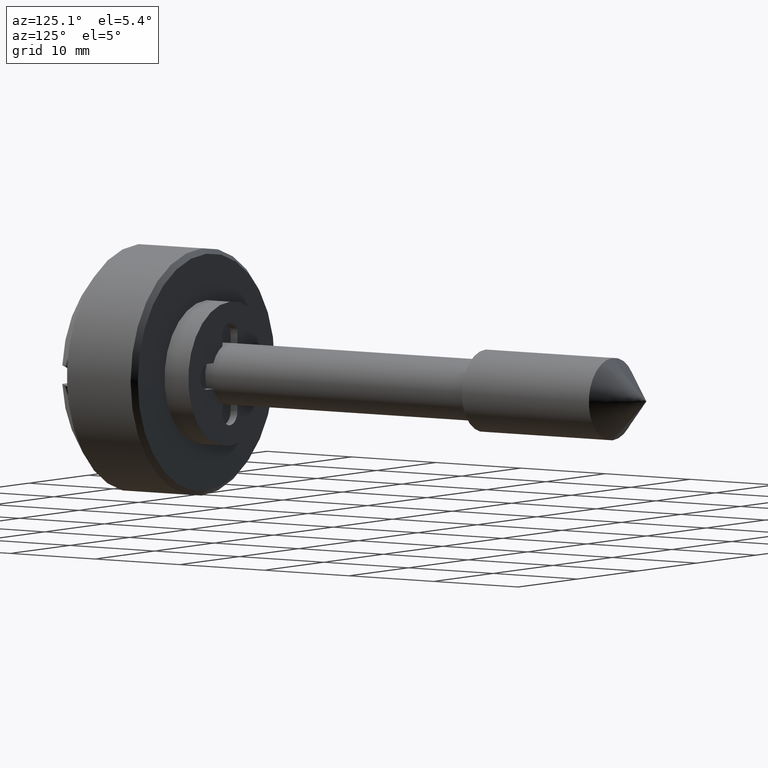
[diagram: clean part render]
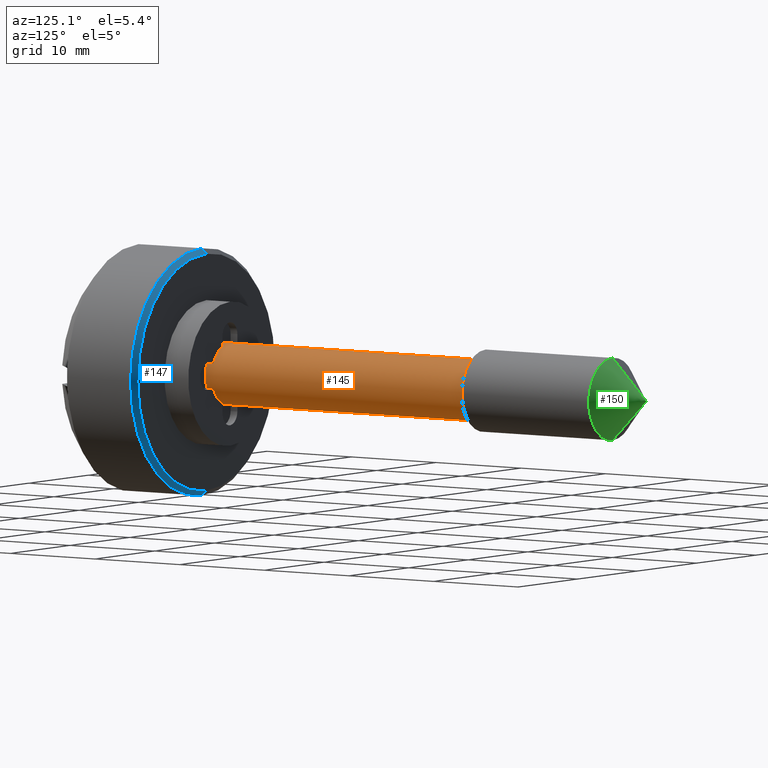
[diagram: same view with three faces highlighted in distinct colors, each labeled with its STEP entity id]
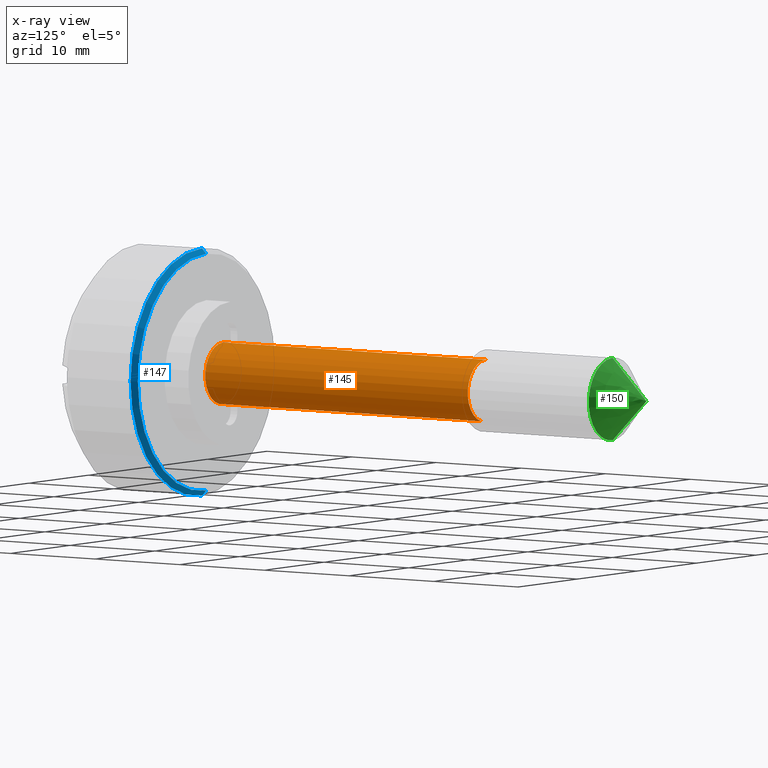
[diagram: x-ray of the same camera — body ghosted, the three highlighted faces saturated]
A machine part, auxiliary view with three faces highlighted in distinct colors.
The next image is the same camera in x-ray (body ghosted, the three faces saturated) — at least one of them is partly hidden behind the body in this view.
Their STEP definitions:

[orange] entity #145 — the highlighted cylindrical surface (edge-blend (fillet) strip) has radius 3 mm, axis along (0, 1, 0).
#145=ADVANCED_FACE('',(#490),#489,.T.);
#489=CYLINDRICAL_SURFACE('',#752,3.00000000000E+00);
#490=FACE_OUTER_BOUND('',#753,.T.);
#749=CARTESIAN_POINT('',(1.00000000000E+03,0.00000000000E+00,0.00000000000E+00));
#750=DIRECTION('',(1.00000000000E+00,-0.00000000000E+00,-0.00000000000E+00));
#751=DIRECTION('',(-0.00000000000E+00,-0.00000000000E+00,-1.00000000000E+00));
#752=AXIS2_PLACEMENT_3D('',#749,#750,#751);
#753=EDGE_LOOP('',(#988,#989,#990,#991));
#988=ORIENTED_EDGE('',*,*,#1086,.T.);
#989=ORIENTED_EDGE('',*,*,#1118,.T.);
#990=ORIENTED_EDGE('',*,*,#1098,.F.);
#991=ORIENTED_EDGE('',*,*,#1119,.F.);
#1086=EDGE_CURVE('',#1504,#1505,#1506,.T.);
#1098=EDGE_CURVE('',#1582,#1581,#1589,.T.);
#1118=EDGE_CURVE('',#1505,#1581,#1720,.T.);
#1119=EDGE_CURVE('',#1504,#1582,#1726,.T.);
#1504=VERTEX_POINT('',#2021);
#1505=VERTEX_POINT('',#2022);
#1506=CIRCLE('',#2026,3.00000000000E+00);
#1581=VERTEX_POINT('',#2075);
#1582=VERTEX_POINT('',#2076);
#1589=CIRCLE('',#2084,3.00000000000E+00);
#1720=(BOUNDED_CURVE() B_SPLINE_CURVE(1,(#2161,#2162),.UNSPECIFIED.,.F.,.F.) B_SPLINE_CURVE_WITH_KNOTS((2,2),(8.33333335810E-02,9.16666666255E-01),.UNSPECIFIED.) CURVE() GEOMETRIC_REPRESENTATION_ITEM() RATIONAL_B_SPLINE_CURVE((1.00000000000E+00,1.00000000000E+00)) REPRESENTATION_ITEM('') );
#1726=(BOUNDED_CURVE() B_SPLINE_CURVE(1,(#2163,#2164),.UNSPECIFIED.,.F.,.F.) B_SPLINE_CURVE_WITH_KNOTS((2,2),(8.33333333333E-02,9.16666666667E-01),.UNSPECIFIED.) CURVE() GEOMETRIC_REPRESENTATION_ITEM() RATIONAL_B_SPLINE_CURVE((7.50000000000E-01,7.50000000000E-01)) REPRESENTATION_ITEM('') );
#2021=CARTESIAN_POINT('',(0.00000000000E+00,-1.48029736617E-16,3.00000000000E+00));
#2022=CARTESIAN_POINT('',(0.00000000000E+00,0.00000000000E+00,-3.00000000000E+00));
#2023=CARTESIAN_POINT('',(0.00000000000E+00,0.00000000000E+00,0.00000000000E+00));
#2024=DIRECTION('',(1.00000000000E+00,0.00000000000E+00,0.00000000000E+00));
#2025=DIRECTION('',(0.00000000000E+00,-1.22460635382E-16,-1.00000000000E+00));
#2026=AXIS2_PLACEMENT_3D('',#2023,#2024,#2025);
#2075=CARTESIAN_POINT('',(3.10000000000E+01,0.00000000000E+00,-3.00000000000E+00));
#2076=CARTESIAN_POINT('',(3.10000000000E+01,-1.48029736617E-16,3.00000000000E+00));
#2081=CARTESIAN_POINT('',(3.10000000000E+01,0.00000000000E+00,0.00000000000E+00));
#2082=DIRECTION('',(1.00000000000E+00,0.00000000000E+00,0.00000000000E+00));
#2083=DIRECTION('',(0.00000000000E+00,-1.22460635382E-16,-1.00000000000E+00));
#2084=AXIS2_PLACEMENT_3D('',#2081,#2082,#2083);
#2161=CARTESIAN_POINT('',(9.21390030939E-09,0.00000000000E+00,-3.00000000000E+00));
#2162=CARTESIAN_POINT('',(3.09999999847E+01,0.00000000000E+00,-3.00000000000E+00));
#2163=CARTESIAN_POINT('',(0.00000000000E+00,-1.48029736617E-16,3.00000000000E+00));
#2164=CARTESIAN_POINT('',(3.10000000000E+01,-1.48029736617E-16,3.00000000000E+00));

[blue] entity #147 — the highlighted face is a freeform B-spline surface patch.
#147=ADVANCED_FACE('',(#510),#509,.T.);
#509=( BOUNDED_SURFACE() B_SPLINE_SURFACE( 2,1,((#765,#766),(#767,#768),(#769,#770),(#771,#772),(#773,#774)), .UNSPECIFIED.,.F.,.F.,.F.) B_SPLINE_SURFACE_WITH_KNOTS((3,2,3),(2,2),(0.00000000000E+00,5.00000000000E-01,1.00000000000E+00),(0.00000000000E+00,1.00000000000E+00), .UNSPECIFIED. ) GEOMETRIC_REPRESENTATION_ITEM() RATIONAL_B_SPLINE_SURFACE(((1.00000000000E+00,1.00000000000E+00),(7.07106781187E-01,7.07106781187E-01),(1.00000000000E+00,1.00000000000E+00),(7.07106781187E-01,7.07106781187E-01),(1.00000000000E+00,1.00000000000E+00))) REPRESENTATION_ITEM('') SURFACE() );
#510=FACE_OUTER_BOUND('',#775,.T.);
#765=CARTESIAN_POINT('',(9.50000000000E+00,0.00000000000E+00,0.00000000000E+00));
#766=CARTESIAN_POINT('',(-7.47056274848E+00,3.37985473175E-15,-1.69705627485E+01));
#767=CARTESIAN_POINT('',(9.50000000000E+00,0.00000000000E+00,0.00000000000E+00));
#768=CARTESIAN_POINT('',(-7.47056274848E+00,-1.69705627485E+01,-1.69705627485E+01));
#769=CARTESIAN_POINT('',(9.50000000000E+00,0.00000000000E+00,0.00000000000E+00));
#770=CARTESIAN_POINT('',(-7.47056274848E+00,-1.69705627485E+01,-4.41900199923E-15));
#771=CARTESIAN_POINT('',(9.50000000000E+00,0.00000000000E+00,0.00000000000E+00));
#772=CARTESIAN_POINT('',(-7.47056274848E+00,-1.69705627485E+01,1.69705627485E+01));
#773=CARTESIAN_POINT('',(9.50000000000E+00,0.00000000000E+00,0.00000000000E+00));
#774=CARTESIAN_POINT('',(-7.47056274848E+00,-5.45814926672E-15,1.69705627485E+01));
#775=EDGE_LOOP('',(#996,#997,#998,#999));
#996=ORIENTED_EDGE('',*,*,#1089,.F.);
#997=ORIENTED_EDGE('',*,*,#1120,.T.);
#998=ORIENTED_EDGE('',*,*,#1114,.F.);
#999=ORIENTED_EDGE('',*,*,#1121,.F.);
#1089=EDGE_CURVE('',#1519,#1518,#1526,.T.);
#1114=EDGE_CURVE('',#1683,#1676,#1696,.T.);
#1120=EDGE_CURVE('',#1519,#1676,#1732,.T.);
#1121=EDGE_CURVE('',#1518,#1683,#1738,.T.);
#1518=VERTEX_POINT('',#2031);
#1519=VERTEX_POINT('',#2032);
#1526=CIRCLE('',#2040,1.15000000000E+01);
#1676=VERTEX_POINT('',#2139);
#1683=VERTEX_POINT('',#2142);
#1696=CIRCLE('',#2152,1.20000000000E+01);
#1732=(BOUNDED_CURVE() B_SPLINE_CURVE(1,(#2165,#2166),.UNSPECIFIED.,.F.,.F.) B_SPLINE_CURVE_WITH_KNOTS((2,2),(6.77643997967E-01,7.07106781279E-01),.UNSPECIFIED.) CURVE() GEOMETRIC_REPRESENTATION_ITEM() RATIONAL_B_SPLINE_CURVE((1.00000000000E+00,1.00000000000E+00)) REPRESENTATION_ITEM('') );
#1738=(BOUNDED_CURVE() B_SPLINE_CURVE(1,(#2167,#2168),.UNSPECIFIED.,.F.,.F.) B_SPLINE_CURVE_WITH_KNOTS((2,2),(6.77643997975E-01,7.07106780467E-01),.UNSPECIFIED.) CURVE() GEOMETRIC_REPRESENTATION_ITEM() RATIONAL_B_SPLINE_CURVE((7.50000000000E-01,7.50000000000E-01)) REPRESENTATION_ITEM('') );
#2031=CARTESIAN_POINT('',(-2.00000000000E+00,0.00000000000E+00,-1.15000000000E+01));
#2032=CARTESIAN_POINT('',(-2.00000000000E+00,5.92118946467E-16,1.15000000000E+01));
#2037=CARTESIAN_POINT('',(-2.00000000000E+00,0.00000000000E+00,0.00000000000E+00));
#2038=DIRECTION('',(1.00000000000E+00,0.00000000000E+00,0.00000000000E+00));
#2039=DIRECTION('',(0.00000000000E+00,-1.22460635382E-16,-1.00000000000E+00));
#2040=AXIS2_PLACEMENT_3D('',#2037,#2038,#2039);
#2139=CARTESIAN_POINT('',(-2.50000000000E+00,-4.73695157173E-15,1.20000000000E+01));
#2142=CARTESIAN_POINT('',(-2.50000000000E+00,0.00000000000E+00,-1.20000000000E+01));
#2149=CARTESIAN_POINT('',(-2.50000000000E+00,0.00000000000E+00,0.00000000000E+00));
#2150=DIRECTION('',(-1.00000000000E+00,0.00000000000E+00,-0.00000000000E+00));
#2151=DIRECTION('',(0.00000000000E+00,-1.22460635382E-16,-1.00000000000E+00));
#2152=AXIS2_PLACEMENT_3D('',#2149,#2150,#2151);
#2165=CARTESIAN_POINT('',(-1.99999998862E+00,-5.98902036357E-15,1.14999999886E+01));
#2166=CARTESIAN_POINT('',(-2.50000000157E+00,-6.24941256029E-15,1.20000000016E+01));
#2167=CARTESIAN_POINT('',(-1.99999998876E+00,4.81495020193E-15,-1.14999999888E+01));
#2168=CARTESIAN_POINT('',(-2.49999998779E+00,5.02429586268E-15,-1.19999999878E+01));

[green] entity #150 — the highlighted face is a freeform B-spline surface patch.
#150=ADVANCED_FACE('',(#540),#539,.T.);
#539=( BOUNDED_SURFACE() B_SPLINE_SURFACE( 2,1,((#786,#787),(#788,#789),(#790,#791),(#792,#793),(#794,#795)), .UNSPECIFIED.,.F.,.F.,.F.) B_SPLINE_SURFACE_WITH_KNOTS((3,2,3),(2,2),(0.00000000000E+00,5.00000000000E-01,1.00000000000E+00),(0.00000000000E+00,1.00000000000E+00), .UNSPECIFIED. ) GEOMETRIC_REPRESENTATION_ITEM() RATIONAL_B_SPLINE_SURFACE(((1.00000000000E+00,1.00000000000E+00),(7.07106781187E-01,7.07106781187E-01),(1.00000000000E+00,1.00000000000E+00),(7.07106781187E-01,7.07106781187E-01),(1.00000000000E+00,1.00000000000E+00))) REPRESENTATION_ITEM('') SURFACE() );
#540=FACE_OUTER_BOUND('',#796,.T.);
#786=CARTESIAN_POINT('',(5.00000000000E+01,0.00000000000E+00,0.00000000000E+00));
#787=CARTESIAN_POINT('',(4.60000000000E+01,-9.79717439318E-16,-4.00000000000E+00));
#788=CARTESIAN_POINT('',(5.00000000000E+01,0.00000000000E+00,0.00000000000E+00));
#789=CARTESIAN_POINT('',(4.60000000000E+01,-4.00000000000E+00,-4.00000000000E+00));
#790=CARTESIAN_POINT('',(5.00000000000E+01,0.00000000000E+00,0.00000000000E+00));
#791=CARTESIAN_POINT('',(4.60000000000E+01,-4.00000000000E+00,7.34788079488E-16));
#792=CARTESIAN_POINT('',(5.00000000000E+01,0.00000000000E+00,0.00000000000E+00));
#793=CARTESIAN_POINT('',(4.60000000000E+01,-4.00000000000E+00,4.00000000000E+00));
#794=CARTESIAN_POINT('',(5.00000000000E+01,0.00000000000E+00,0.00000000000E+00));
#795=CARTESIAN_POINT('',(4.60000000000E+01,4.89858719659E-16,4.00000000000E+00));
#796=EDGE_LOOP('',(#1008,#1009,#1010));
#1008=ORIENTED_EDGE('',*,*,#1125,.F.);
#1009=ORIENTED_EDGE('',*,*,#1126,.F.);
#1010=ORIENTED_EDGE('',*,*,#1127,.T.);
#1125=EDGE_CURVE('',#1745,#1744,#1764,.T.);
#1126=EDGE_CURVE('',#1770,#1745,#1771,.T.);
#1127=EDGE_CURVE('',#1770,#1744,#1777,.T.);
#1744=VERTEX_POINT('',#2169);
#1745=VERTEX_POINT('',#2170);
#1764=CIRCLE('',#2182,4.00000000000E+00);
#1770=VERTEX_POINT('',#2183);
#1771=(BOUNDED_CURVE() B_SPLINE_CURVE(1,(#2184,#2185),.UNSPECIFIED.,.F.,.F.) B_SPLINE_CURVE_WITH_KNOTS((2,2),(0.00000000000E+00,1.00000000000E+00),.UNSPECIFIED.) CURVE() GEOMETRIC_REPRESENTATION_ITEM() RATIONAL_B_SPLINE_CURVE((1.00000000000E+00,1.00000000000E+00)) REPRESENTATION_ITEM('') );
#1777=(BOUNDED_CURVE() B_SPLINE_CURVE(1,(#2186,#2187),.UNSPECIFIED.,.F.,.F.) B_SPLINE_CURVE_WITH_KNOTS((2,2),(0.00000000000E+00,1.00000000000E+00),.UNSPECIFIED.) CURVE() GEOMETRIC_REPRESENTATION_ITEM() RATIONAL_B_SPLINE_CURVE((7.50000000000E-01,7.50000000000E-01)) REPRESENTATION_ITEM('') );
#2169=CARTESIAN_POINT('',(4.60000000000E+01,0.00000000000E+00,4.00000000000E+00));
#2170=CARTESIAN_POINT('',(4.60000000000E+01,4.44089209850E-16,-4.00000000000E+00));
#2179=CARTESIAN_POINT('',(4.60000000000E+01,0.00000000000E+00,0.00000000000E+00));
#2180=DIRECTION('',(-1.00000000000E+00,0.00000000000E+00,0.00000000000E+00));
#2181=DIRECTION('',(0.00000000000E+00,-1.22460635382E-16,1.00000000000E+00));
#2182=AXIS2_PLACEMENT_3D('',#2179,#2180,#2181);
#2183=CARTESIAN_POINT('',(5.00000000000E+01,0.00000000000E+00,0.00000000000E+00));
#2184=CARTESIAN_POINT('',(5.00000000000E+01,0.00000000000E+00,0.00000000000E+00));
#2185=CARTESIAN_POINT('',(4.60000000000E+01,-9.79717439318E-16,-4.00000000000E+00));
#2186=CARTESIAN_POINT('',(5.00000000000E+01,0.00000000000E+00,0.00000000000E+00));
#2187=CARTESIAN_POINT('',(4.60000000000E+01,1.03620815632E-15,4.00000000000E+00));